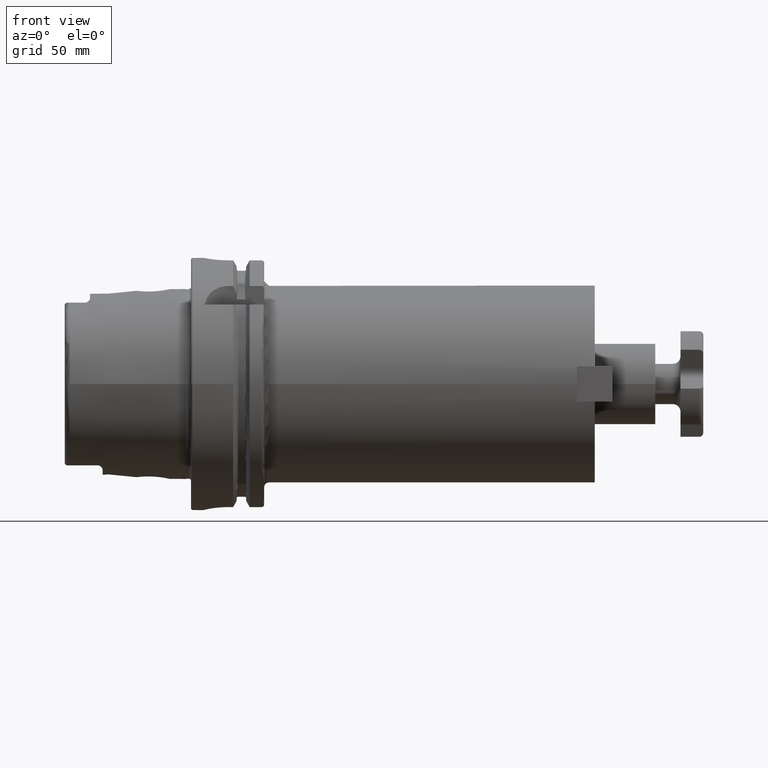
[diagram: clean part render]
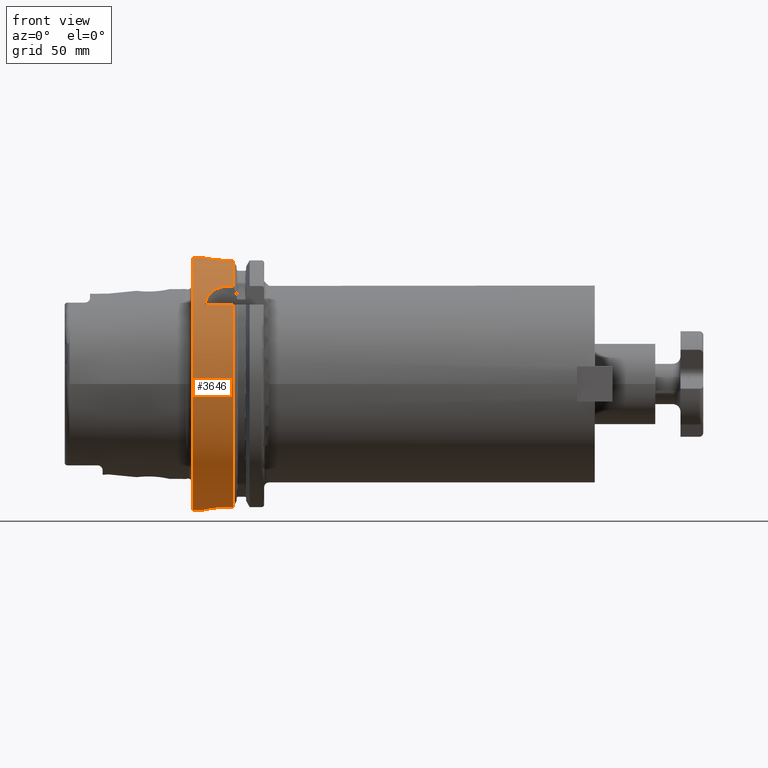
[diagram: same view with one face highlighted and labeled with its STEP entity id]
A machine part, front view. The second image highlights one B-rep face of the part: STEP entity #3646.
In plain terms, the highlighted cylindrical surface (bore or boss wall) has radius 50 mm, axis along (1, 0, 0).
Its self-contained STEP definition (entity closure, byte-faithful):
#618=B_SPLINE_CURVE_WITH_KNOTS('',3,(#6447,#6448,#6449,#6450,#6451,#6452,
#6453,#6454,#6455,#6456,#6457,#6458,#6459,#6460,#6461,#6462,#6463,#6464,
#6465,#6466,#6467,#6468,#6469,#6470,#6471,#6472),.UNSPECIFIED.,.F.,.F.,
(4,2,2,2,2,2,2,2,2,2,2,2,4),(0.,0.188478911015149,0.376957822030298,0.565436091508923,
0.753914360987547,0.942392630466172,1.1308708999448,1.31934981095995,1.50782872197509,
1.69630763299024,1.88478654400539,2.07326481348402,2.26174308296264),
 .UNSPECIFIED.);
#619=B_SPLINE_CURVE_WITH_KNOTS('',3,(#6473,#6474,#6475,#6476,#6477,#6478,
#6479,#6480,#6481,#6482),.UNSPECIFIED.,.F.,.F.,(4,2,2,2,4),(2.26174308296264,
2.45022135244127,2.63869962191989,2.82717853293504,3.01565744395019),
 .UNSPECIFIED.);
#620=B_SPLINE_CURVE_WITH_KNOTS('',3,(#6486,#6487,#6488,#6489,#6490,#6491,
#6492,#6493,#6494,#6495,#6496,#6497),.UNSPECIFIED.,.F.,.F.,(4,2,2,2,2,4),
(1.13213255574021,1.59216410027009,1.87572541272146,2.15928672517283,2.38471683342296,
2.61014694167308),.UNSPECIFIED.);
#627=B_SPLINE_CURVE_WITH_KNOTS('',3,(#6610,#6611,#6612,#6613,#6614,#6615,
#6616,#6617,#6618,#6619,#6620,#6621,#6622,#6623,#6624,#6625,#6626,#6627),
 .UNSPECIFIED.,.F.,.F.,(4,2,2,2,2,2,2,2,4),(0.,0.377795255890194,0.755590511780389,
1.13336459804459,1.51113868430879,1.88891277057299,2.26668685683718,2.64448211272738,
3.02227736861757),.UNSPECIFIED.);
#628=B_SPLINE_CURVE_WITH_KNOTS('',3,(#6635,#6636,#6637,#6638,#6639,#6640,
#6641,#6642,#6643,#6644),.UNSPECIFIED.,.F.,.F.,(4,2,2,2,4),(0.,0.377863193874929,
0.755726387749858,1.13417752669663,1.51262866564341),.UNSPECIFIED.);
#629=B_SPLINE_CURVE_WITH_KNOTS('',3,(#6648,#6649,#6650,#6651,#6652,#6653,
#6654,#6655,#6656,#6657),.UNSPECIFIED.,.F.,.F.,(4,2,2,2,4),(1.50996806152532,
1.8884192004721,2.26687033941887,2.6447335332938,3.02259672716873),
 .UNSPECIFIED.);
#706=FACE_BOUND('',#1096,.T.);
#808=CYLINDRICAL_SURFACE('',#4064,50.);
#900=FACE_OUTER_BOUND('',#1095,.T.);
#1095=EDGE_LOOP('',(#2937,#2938,#2939,#2940,#2941,#2942,#2943,#2944,#2945,
#2946,#2947,#2948,#2949,#2950,#2951,#2952,#2953,#2954));
#1096=EDGE_LOOP('',(#2955,#2956));
#1301=LINE('',#6503,#1493);
#1307=LINE('',#6555,#1499);
#1312=LINE('',#6608,#1504);
#1313=LINE('',#6629,#1505);
#1314=LINE('',#6633,#1506);
#1315=LINE('',#6659,#1507);
#1316=LINE('',#6663,#1508);
#1493=VECTOR('',#4731,10.);
#1499=VECTOR('',#4739,10.);
#1504=VECTOR('',#4748,10.);
#1505=VECTOR('',#4749,10.);
#1506=VECTOR('',#4752,10.);
#1507=VECTOR('',#4755,10.);
#1508=VECTOR('',#4758,50.);
#1685=CIRCLE('',#4065,50.);
#1686=CIRCLE('',#4066,50.);
#1687=CIRCLE('',#4067,50.);
#1688=CIRCLE('',#4068,50.);
#1689=CIRCLE('',#4069,50.);
#1690=CIRCLE('',#4070,50.);
#1968=VERTEX_POINT('',#6444);
#1969=VERTEX_POINT('',#6446);
#1970=VERTEX_POINT('',#6484);
#1971=VERTEX_POINT('',#6485);
#1973=VERTEX_POINT('',#6502);
#1982=VERTEX_POINT('',#6554);
#1991=VERTEX_POINT('',#6605);
#1992=VERTEX_POINT('',#6607);
#1993=VERTEX_POINT('',#6609);
#1994=VERTEX_POINT('',#6628);
#1995=VERTEX_POINT('',#6630);
#1996=VERTEX_POINT('',#6632);
#1997=VERTEX_POINT('',#6634);
#1998=VERTEX_POINT('',#6645);
#1999=VERTEX_POINT('',#6647);
#2000=VERTEX_POINT('',#6658);
#2001=VERTEX_POINT('',#6660);
#2002=VERTEX_POINT('',#6662);
#2323=EDGE_CURVE('',#1969,#1968,#618,.T.);
#2324=EDGE_CURVE('',#1968,#1969,#619,.T.);
#2325=EDGE_CURVE('',#1970,#1971,#620,.T.);
#2328=EDGE_CURVE('',#1971,#1973,#1301,.T.);
#2339=EDGE_CURVE('',#1982,#1970,#1307,.T.);
#2349=EDGE_CURVE('',#1991,#1973,#1685,.T.);
#2350=EDGE_CURVE('',#1991,#1992,#1312,.T.);
#2351=EDGE_CURVE('',#1992,#1993,#627,.T.);
#2352=EDGE_CURVE('',#1993,#1994,#1313,.T.);
#2353=EDGE_CURVE('',#1995,#1994,#1686,.T.);
#2354=EDGE_CURVE('',#1995,#1996,#1314,.T.);
#2355=EDGE_CURVE('',#1996,#1997,#628,.T.);
#2356=EDGE_CURVE('',#1997,#1998,#1687,.T.);
#2357=EDGE_CURVE('',#1998,#1999,#629,.T.);
#2358=EDGE_CURVE('',#1999,#2000,#1315,.T.);
#2359=EDGE_CURVE('',#2001,#2000,#1688,.T.);
#2360=EDGE_CURVE('',#2001,#2002,#1316,.T.);
#2361=EDGE_CURVE('',#2002,#2002,#1689,.T.);
#2362=EDGE_CURVE('',#1982,#2001,#1690,.T.);
#2937=ORIENTED_EDGE('',*,*,#2339,.T.);
#2938=ORIENTED_EDGE('',*,*,#2325,.T.);
#2939=ORIENTED_EDGE('',*,*,#2328,.T.);
#2940=ORIENTED_EDGE('',*,*,#2349,.F.);
#2941=ORIENTED_EDGE('',*,*,#2350,.T.);
#2942=ORIENTED_EDGE('',*,*,#2351,.T.);
#2943=ORIENTED_EDGE('',*,*,#2352,.T.);
#2944=ORIENTED_EDGE('',*,*,#2353,.F.);
#2945=ORIENTED_EDGE('',*,*,#2354,.T.);
#2946=ORIENTED_EDGE('',*,*,#2355,.T.);
#2947=ORIENTED_EDGE('',*,*,#2356,.T.);
#2948=ORIENTED_EDGE('',*,*,#2357,.T.);
#2949=ORIENTED_EDGE('',*,*,#2358,.T.);
#2950=ORIENTED_EDGE('',*,*,#2359,.F.);
#2951=ORIENTED_EDGE('',*,*,#2360,.T.);
#2952=ORIENTED_EDGE('',*,*,#2361,.T.);
#2953=ORIENTED_EDGE('',*,*,#2360,.F.);
#2954=ORIENTED_EDGE('',*,*,#2362,.F.);
#2955=ORIENTED_EDGE('',*,*,#2323,.T.);
#2956=ORIENTED_EDGE('',*,*,#2324,.T.);
#3646=ADVANCED_FACE('',(#900,#706),#808,.T.);
#4064=AXIS2_PLACEMENT_3D('',#6604,#4744,#4745);
#4065=AXIS2_PLACEMENT_3D('',#6606,#4746,#4747);
#4066=AXIS2_PLACEMENT_3D('',#6631,#4750,#4751);
#4067=AXIS2_PLACEMENT_3D('',#6646,#4753,#4754);
#4068=AXIS2_PLACEMENT_3D('',#6661,#4756,#4757);
#4069=AXIS2_PLACEMENT_3D('',#6664,#4759,#4760);
#4070=AXIS2_PLACEMENT_3D('',#6665,#4761,#4762);
#4731=DIRECTION('',(1.,0.,0.));
#4739=DIRECTION('',(-1.,0.,0.));
#4744=DIRECTION('center_axis',(1.,0.,0.));
#4745=DIRECTION('ref_axis',(0.,1.,0.));
#4746=DIRECTION('center_axis',(1.,0.,0.));
#4747=DIRECTION('ref_axis',(0.,0.,-1.));
#4748=DIRECTION('',(-1.,0.,0.));
#4749=DIRECTION('',(1.,0.,0.));
#4750=DIRECTION('center_axis',(1.,0.,0.));
#4751=DIRECTION('ref_axis',(0.,0.,-1.));
#4752=DIRECTION('',(-1.,0.,0.));
#4753=DIRECTION('center_axis',(-1.,0.,0.));
#4754=DIRECTION('ref_axis',(0.,1.,0.));
#4755=DIRECTION('',(1.,0.,0.));
#4756=DIRECTION('center_axis',(1.,0.,0.));
#4757=DIRECTION('ref_axis',(0.,0.,-1.));
#4758=DIRECTION('',(-1.,0.,0.));
#4759=DIRECTION('center_axis',(1.,0.,0.));
#4760=DIRECTION('ref_axis',(0.,0.,-1.));
#4761=DIRECTION('center_axis',(1.,0.,0.));
#4762=DIRECTION('ref_axis',(0.,0.,-1.));
#6444=CARTESIAN_POINT('',(12.,50.,-6.12323399573677E-16));
#6446=CARTESIAN_POINT('',(6.99999999999999,49.749371855331,5.));
#6447=CARTESIAN_POINT('Ctrl Pts',(6.99999999999999,49.749371855331,5.));
#6448=CARTESIAN_POINT('Ctrl Pts',(6.37173696328283,49.749371855331,5.));
#6449=CARTESIAN_POINT('Ctrl Pts',(5.70188570880885,49.7624993987098,4.87435544587055));
#6450=CARTESIAN_POINT('Ctrl Pts',(4.4701142477173,49.8098541153698,4.36395693611591));
#6451=CARTESIAN_POINT('Ctrl Pts',(3.90815809537484,49.8433908660961,3.97922590724033));
#6452=CARTESIAN_POINT('Ctrl Pts',(3.02077560297968,49.9062957431473,3.09184341484517));
#6453=CARTESIAN_POINT('Ctrl Pts',(2.63604339567929,49.9397591808605,2.52988660036719));
#6454=CARTESIAN_POINT('Ctrl Pts',(2.12564400622109,49.9869460568296,1.29811292154946));
#6455=CARTESIAN_POINT('Ctrl Pts',(1.99999999999999,50.,0.628260898262081));
#6456=CARTESIAN_POINT('Ctrl Pts',(1.99999999999999,50.,-0.628260898262082));
#6457=CARTESIAN_POINT('Ctrl Pts',(2.12564400622109,49.9869460568296,-1.29811292154946));
#6458=CARTESIAN_POINT('Ctrl Pts',(2.63604339567929,49.9397591808605,-2.52988660036719));
#6459=CARTESIAN_POINT('Ctrl Pts',(3.02077560297968,49.9062957431473,-3.09184341484517));
#6460=CARTESIAN_POINT('Ctrl Pts',(3.90815809537484,49.8433908660961,-3.97922590724033));
#6461=CARTESIAN_POINT('Ctrl Pts',(4.4701142477173,49.8098541153698,-4.36395693611591));
#6462=CARTESIAN_POINT('Ctrl Pts',(5.70188570880885,49.7624993987098,-4.87435544587055));
#6463=CARTESIAN_POINT('Ctrl Pts',(6.37173696328283,49.749371855331,-5.));
#6464=CARTESIAN_POINT('Ctrl Pts',(7.62826303671716,49.749371855331,-5.));
#6465=CARTESIAN_POINT('Ctrl Pts',(8.29811429119113,49.7624993987098,-4.87435544587055));
#6466=CARTESIAN_POINT('Ctrl Pts',(9.52988575228269,49.8098541153698,-4.36395693611591));
#6467=CARTESIAN_POINT('Ctrl Pts',(10.0918419046251,49.8433908660961,-3.97922590724033));
#6468=CARTESIAN_POINT('Ctrl Pts',(10.9792243970203,49.9062957431473,-3.09184341484517));
#6469=CARTESIAN_POINT('Ctrl Pts',(11.3639566043207,49.9397591808605,-2.52988660036719));
#6470=CARTESIAN_POINT('Ctrl Pts',(11.8743559937789,49.9869460568296,-1.29811292154947));
#6471=CARTESIAN_POINT('Ctrl Pts',(12.,50.,-0.628260898262083));
#6472=CARTESIAN_POINT('Ctrl Pts',(12.,50.,-5.55111512312578E-16));
#6473=CARTESIAN_POINT('Ctrl Pts',(12.,50.,-5.55111512312578E-16));
#6474=CARTESIAN_POINT('Ctrl Pts',(12.,50.,0.628260898262082));
#6475=CARTESIAN_POINT('Ctrl Pts',(11.8743559937789,49.9869460568296,1.29811292154946));
#6476=CARTESIAN_POINT('Ctrl Pts',(11.3639566043207,49.9397591808605,2.52988660036719));
#6477=CARTESIAN_POINT('Ctrl Pts',(10.9792243970203,49.9062957431473,3.09184341484517));
#6478=CARTESIAN_POINT('Ctrl Pts',(10.0918419046251,49.8433908660961,3.97922590724033));
#6479=CARTESIAN_POINT('Ctrl Pts',(9.52988575228269,49.8098541153698,4.36395693611591));
#6480=CARTESIAN_POINT('Ctrl Pts',(8.29811429119113,49.7624993987098,4.87435544587055));
#6481=CARTESIAN_POINT('Ctrl Pts',(7.62826303671716,49.749371855331,5.));
#6482=CARTESIAN_POINT('Ctrl Pts',(6.99999999999999,49.749371855331,5.));
#6484=CARTESIAN_POINT('',(5.36310214079494,-38.8297566307078,31.5));
#6485=CARTESIAN_POINT('',(15.,-31.5,38.8297566307078));
#6486=CARTESIAN_POINT('Ctrl Pts',(5.36310214079494,-38.8297566307078,31.5));
#6487=CARTESIAN_POINT('Ctrl Pts',(5.63795050776221,-37.8378299510303,32.722738779917));
#6488=CARTESIAN_POINT('Ctrl Pts',(6.08245260240086,-36.8264130955983,33.8486741193789));
#6489=CARTESIAN_POINT('Ctrl Pts',(7.14730321206235,-35.2667182945212,35.4540138707062));
#6490=CARTESIAN_POINT('Ctrl Pts',(7.68113760815893,-34.6306580359392,36.0741351437033));
#6491=CARTESIAN_POINT('Ctrl Pts',(8.97436758466638,-33.4722127660808,37.1515365058173));
#6492=CARTESIAN_POINT('Ctrl Pts',(9.73574998094174,-32.9521170857844,37.6088911783762));
#6493=CARTESIAN_POINT('Ctrl Pts',(11.1521999725134,-32.2432973482077,38.2170233500259));
#6494=CARTESIAN_POINT('Ctrl Pts',(11.8888981504148,-31.9629772872452,38.4503075998006));
#6495=CARTESIAN_POINT('Ctrl Pts',(13.4369856471743,-31.5908755949743,38.7566077888176));
#6496=CARTESIAN_POINT('Ctrl Pts',(14.2485663058329,-31.5,38.8297566307078));
#6497=CARTESIAN_POINT('Ctrl Pts',(15.,-31.5,38.8297566307078));
#6502=CARTESIAN_POINT('',(16.7379709790786,-31.5,38.8297566307078));
#6503=CARTESIAN_POINT('',(8.61898548953931,-31.5,38.8297566307078));
#6554=CARTESIAN_POINT('',(16.7379709790786,-38.8297566307078,31.5));
#6555=CARTESIAN_POINT('',(8.61898548953931,-38.8297566307078,31.5));
#6604=CARTESIAN_POINT('Origin',(8.61898548953931,0.,0.));
#6605=CARTESIAN_POINT('',(16.7379709790786,-10.,48.9897948556636));
#6606=CARTESIAN_POINT('Origin',(16.7379709790786,0.,0.));
#6607=CARTESIAN_POINT('',(15.,-10.,48.9897948556636));
#6608=CARTESIAN_POINT('',(8.61898548953931,-10.,48.9897948556636));
#6609=CARTESIAN_POINT('',(15.,10.,48.9897948556636));
#6610=CARTESIAN_POINT('Ctrl Pts',(15.,-10.,48.9897948556636));
#6611=CARTESIAN_POINT('Ctrl Pts',(13.740682480366,-10.,48.9897948556636));
#6612=CARTESIAN_POINT('Ctrl Pts',(12.3998222283811,-9.74762796248614,49.0433876618447));
#6613=CARTESIAN_POINT('Ctrl Pts',(9.93707994969945,-8.72605417648382,49.2354150792771));
#6614=CARTESIAN_POINT('Ctrl Pts',(8.81489539818993,-7.95703102192089,49.3709085101933));
#6615=CARTESIAN_POINT('Ctrl Pts',(7.04301862271998,-6.18515424645094,49.6240337638318));
#6616=CARTESIAN_POINT('Ctrl Pts',(6.27395658455242,-5.06294861197626,49.7583347151863));
#6617=CARTESIAN_POINT('Ctrl Pts',(5.25235457764165,-2.60013306081865,49.9476188647081));
#6618=CARTESIAN_POINT('Ctrl Pts',(4.99999999999999,-1.259246954214,50.));
#6619=CARTESIAN_POINT('Ctrl Pts',(4.99999999999999,1.259246954214,50.));
#6620=CARTESIAN_POINT('Ctrl Pts',(5.25235457764165,2.60013306081865,49.9476188647081));
#6621=CARTESIAN_POINT('Ctrl Pts',(6.27395658455242,5.06294861197626,49.7583347151863));
#6622=CARTESIAN_POINT('Ctrl Pts',(7.04301862271998,6.18515424645094,49.6240337638318));
#6623=CARTESIAN_POINT('Ctrl Pts',(8.81489539818993,7.95703102192089,49.3709085101933));
#6624=CARTESIAN_POINT('Ctrl Pts',(9.93707994969945,8.72605417648382,49.2354150792771));
#6625=CARTESIAN_POINT('Ctrl Pts',(12.3998222283811,9.74762796248614,49.0433876618447));
#6626=CARTESIAN_POINT('Ctrl Pts',(13.740682480366,10.,48.9897948556636));
#6627=CARTESIAN_POINT('Ctrl Pts',(15.,10.,48.9897948556636));
#6628=CARTESIAN_POINT('',(16.7379709790786,10.,48.9897948556636));
#6629=CARTESIAN_POINT('',(8.61898548953931,10.,48.9897948556636));
#6630=CARTESIAN_POINT('',(16.7379709790786,11.,-48.7749935930288));
#6631=CARTESIAN_POINT('Origin',(16.7379709790786,0.,0.));
#6632=CARTESIAN_POINT('',(15.,11.,-48.7749935930288));
#6633=CARTESIAN_POINT('',(8.61898548953931,11.,-48.7749935930288));
#6634=CARTESIAN_POINT('',(4.99999999999999,0.999999999999997,-49.9899989998));
#6635=CARTESIAN_POINT('Ctrl Pts',(15.,11.,-48.7749935930288));
#6636=CARTESIAN_POINT('Ctrl Pts',(13.7404560204169,11.,-48.7749935930288));
#6637=CARTESIAN_POINT('Ctrl Pts',(12.3998213084084,10.7475295248871,-48.8340306344483));
#6638=CARTESIAN_POINT('Ctrl Pts',(9.9383361278342,9.72667325975831,-49.0475663096823));
#6639=CARTESIAN_POINT('Ctrl Pts',(8.81713821454868,8.95850056252305,-49.1990678796225));
#6640=CARTESIAN_POINT('Ctrl Pts',(7.04551978193545,7.18842719108522,-49.4887060645896));
#6641=CARTESIAN_POINT('Ctrl Pts',(6.27594389465425,6.06650925178,-49.6460359942126));
#6642=CARTESIAN_POINT('Ctrl Pts',(5.25307325920197,3.60309260864685,-49.8853600567865));
#6643=CARTESIAN_POINT('Ctrl Pts',(4.99999999999999,2.26125147049483,-49.9647689238702));
#6644=CARTESIAN_POINT('Ctrl Pts',(4.99999999999999,1.,-49.9899989998));
#6645=CARTESIAN_POINT('',(4.99999999999999,-1.00000000000001,-49.9899989998));
#6646=CARTESIAN_POINT('Origin',(4.99999999999999,0.,0.));
#6647=CARTESIAN_POINT('',(15.,-11.,-48.7749935930288));
#6648=CARTESIAN_POINT('Ctrl Pts',(4.99999999999999,-1.,-49.9899989998));
#6649=CARTESIAN_POINT('Ctrl Pts',(4.99999999999999,-2.26125147049483,-49.9647689238702));
#6650=CARTESIAN_POINT('Ctrl Pts',(5.25307325920197,-3.60309260864686,-49.8853600567865));
#6651=CARTESIAN_POINT('Ctrl Pts',(6.27594389465425,-6.06650925178001,-49.6460359942126));
#6652=CARTESIAN_POINT('Ctrl Pts',(7.04551978193545,-7.18842719108522,-49.4887060645896));
#6653=CARTESIAN_POINT('Ctrl Pts',(8.81713821454868,-8.95850056252306,-49.1990678796225));
#6654=CARTESIAN_POINT('Ctrl Pts',(9.9383361278342,-9.72667325975831,-49.0475663096823));
#6655=CARTESIAN_POINT('Ctrl Pts',(12.3998213084084,-10.7475295248871,-48.8340306344483));
#6656=CARTESIAN_POINT('Ctrl Pts',(13.7404560204169,-11.,-48.7749935930288));
#6657=CARTESIAN_POINT('Ctrl Pts',(15.,-11.,-48.7749935930288));
#6658=CARTESIAN_POINT('',(16.7379709790786,-11.,-48.7749935930288));
#6659=CARTESIAN_POINT('',(8.61898548953931,-11.,-48.7749935930288));
#6660=CARTESIAN_POINT('',(16.7379709790786,-50.,-6.12323399573677E-15));
#6661=CARTESIAN_POINT('Origin',(16.7379709790786,0.,0.));
#6662=CARTESIAN_POINT('',(0.5,-50.,-6.12323399573677E-15));
#6663=CARTESIAN_POINT('',(8.61898548953931,-50.,-6.12323399573677E-15));
#6664=CARTESIAN_POINT('Origin',(0.5,0.,0.));
#6665=CARTESIAN_POINT('Origin',(16.7379709790786,0.,0.));